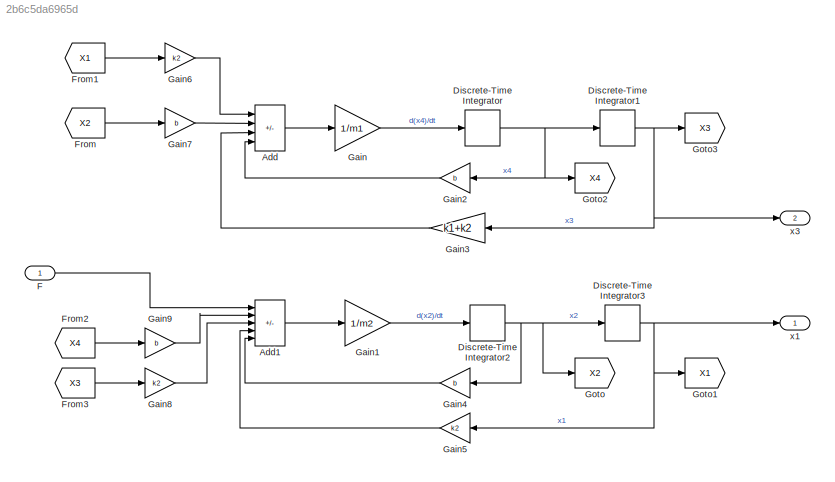
MODEL slx_2b6c5da6965d
KIND model
CONFIG AbsTol = auto
CONFIG EnableMultiTasking = off
CONFIG FixedStep = 0.2
CONFIG MaxStep = auto
CONFIG MinStep = auto
CONFIG RelTol = 1e-3
CONFIG SampleTimeConstraint = Unconstrained
CONFIG SolverName = FixedStepAuto
CONFIG StartTime = 0.0
CONFIG StopTime = 10.0
WORKSPACE source: mxarray member
WORKSPACE b = 4
WORKSPACE k1 = 5
WORKSPACE k2 = 3
WORKSPACE m1 = 2
WORKSPACE m2 = 2
BLOCK [Sum] Add
  IconShape = rectangular
  Inputs = ++--
  Ports = [4, 1]
BLOCK [Sum] Add1
  IconShape = rectangular
  Inputs = +++--
  Ports = [5, 1]
BLOCK [DiscreteIntegrator] Discrete-Time Integrator
  ICPrevOutput = DiscIntNeverNeededParam
  ICPrevScaledInput = DiscIntNeverNeededParam
  InitialConditionSetting = Auto
  Ports = [1, 1]
  SampleTime = -1
BLOCK [DiscreteIntegrator] Discrete-Time Integrator1
  ICPrevOutput = DiscIntNeverNeededParam
  ICPrevScaledInput = DiscIntNeverNeededParam
  InitialConditionSetting = Auto
  Ports = [1, 1]
  SampleTime = -1
BLOCK [DiscreteIntegrator] Discrete-Time Integrator2
  ICPrevOutput = DiscIntNeverNeededParam
  ICPrevScaledInput = DiscIntNeverNeededParam
  InitialConditionSetting = Auto
  Ports = [1, 1]
  SampleTime = -1
BLOCK [DiscreteIntegrator] Discrete-Time Integrator3
  ICPrevOutput = DiscIntNeverNeededParam
  ICPrevScaledInput = DiscIntNeverNeededParam
  InitialConditionSetting = Auto
  Ports = [1, 1]
  SampleTime = -1
BLOCK [Inport] F
  OutDataTypeStr = double
  PortDimensions = 1
  SamplingMode = Sample based
  SignalType = real
BLOCK [From] From
  GotoTag = X2
BLOCK [From] From1
  GotoTag = X1
BLOCK [From] From2
  GotoTag = X4
BLOCK [From] From3
  GotoTag = X3
BLOCK [Gain] Gain
  Gain = 1/m1
BLOCK [Gain] Gain1
  Gain = 1/m2
BLOCK [Gain] Gain2
  Gain = b
BLOCK [Gain] Gain3
  Gain = k1+k2
BLOCK [Gain] Gain4
  Gain = b
BLOCK [Gain] Gain5
  Gain = k2
BLOCK [Gain] Gain6
  Gain = k2
BLOCK [Gain] Gain7
  Gain = b
BLOCK [Gain] Gain8
  Gain = k2
BLOCK [Gain] Gain9
  Gain = b
BLOCK [Goto] Goto
  GotoTag = X2
BLOCK [Goto] Goto1
  GotoTag = X1
BLOCK [Goto] Goto2
  GotoTag = X4
BLOCK [Goto] Goto3
  GotoTag = X3
BLOCK [Outport] x1
  OutDataTypeStr = double
  PortDimensions = 1
  SampleTime = [0.20000000000000001,0]
  SamplingMode = Sample based
  SignalType = real
BLOCK [Outport] x3
  OutDataTypeStr = double
  Port = 2
  PortDimensions = 1
  SampleTime = [0.20000000000000001,0]
  SamplingMode = Sample based
  SignalType = real
LINE Add1:1 -> Gain1:1
LINE Add:1 -> Gain:1
NET Discrete-Time Integrator1:1 -> Gain3:1, Goto3:1, x3:1
NET Discrete-Time Integrator2:1 -> Discrete-Time Integrator3:1, Gain4:1, Goto:1
NET Discrete-Time Integrator3:1 -> Gain5:1, Goto1:1, x1:1
NET Discrete-Time Integrator:1 -> Discrete-Time Integrator1:1, Gain2:1, Goto2:1
LINE F:1 -> Add1:1
LINE From1:1 -> Gain6:1
LINE From2:1 -> Gain9:1
LINE From3:1 -> Gain8:1
LINE From:1 -> Gain7:1
LINE Gain1:1 -> Discrete-Time Integrator2:1
LINE Gain2:1 -> Add:4
LINE Gain3:1 -> Add:3
LINE Gain4:1 -> Add1:5
LINE Gain5:1 -> Add1:4
LINE Gain6:1 -> Add:1
LINE Gain7:1 -> Add:2
LINE Gain8:1 -> Add1:3
LINE Gain9:1 -> Add1:2
LINE Gain:1 -> Discrete-Time Integrator:1
note: NET lines group one-source signal fan-out (src -> all destinations, sorted); 1:1 wires keep LINE
